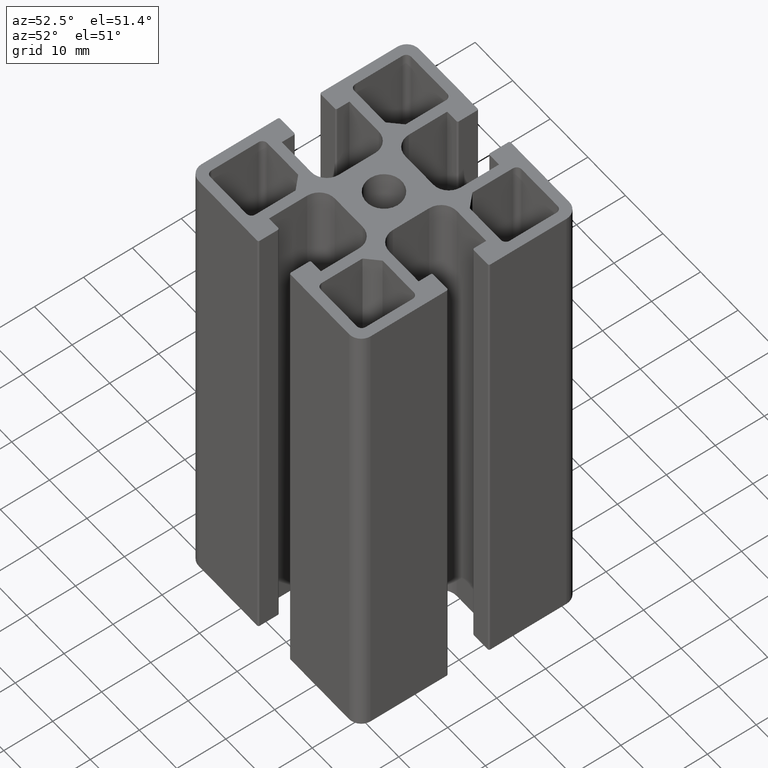
[diagram: clean part render]
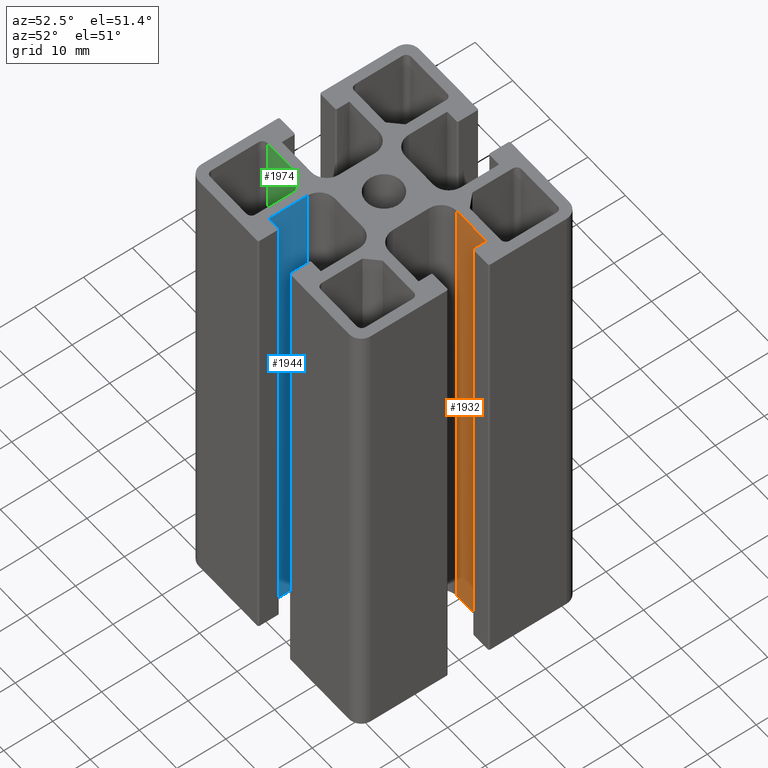
[diagram: same view with three faces highlighted in distinct colors, each labeled with its STEP entity id]
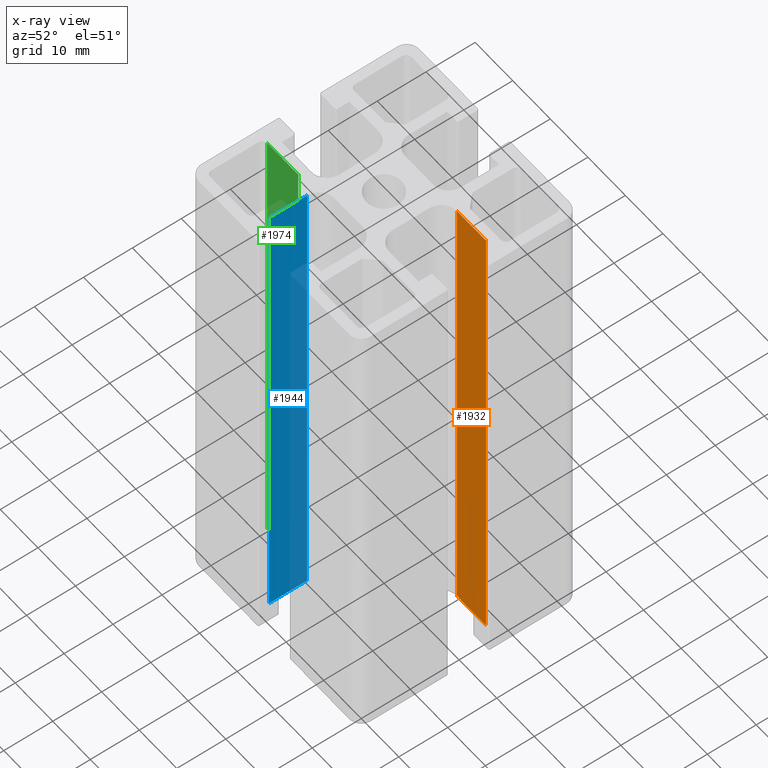
[diagram: x-ray of the same camera — body ghosted, the three highlighted faces saturated]
A machine part, auxiliary view with three faces highlighted in distinct colors.
The next image is the same camera in x-ray (body ghosted, the three faces saturated) — at least one of them is partly hidden behind the body in this view.
Their STEP definitions:

[orange] entity #1932 — the highlighted planar face has unit normal (0, 1, 0).
#185=FACE_OUTER_BOUND('',#285,.T.);
#285=EDGE_LOOP('',(#1400,#1401,#1402,#1403));
#435=LINE('',#2970,#643);
#437=LINE('',#2974,#645);
#438=LINE('',#2976,#646);
#439=LINE('',#2977,#647);
#643=VECTOR('',#2389,100.);
#645=VECTOR('',#2393,7.8);
#646=VECTOR('',#2394,100.);
#647=VECTOR('',#2395,7.8);
#848=VERTEX_POINT('',#2967);
#849=VERTEX_POINT('',#2969);
#850=VERTEX_POINT('',#2973);
#851=VERTEX_POINT('',#2975);
#1075=EDGE_CURVE('',#849,#848,#435,.T.);
#1077=EDGE_CURVE('',#850,#848,#437,.T.);
#1078=EDGE_CURVE('',#851,#850,#438,.T.);
#1079=EDGE_CURVE('',#849,#851,#439,.T.);
#1400=ORIENTED_EDGE('',*,*,#1077,.F.);
#1401=ORIENTED_EDGE('',*,*,#1078,.F.);
#1402=ORIENTED_EDGE('',*,*,#1079,.F.);
#1403=ORIENTED_EDGE('',*,*,#1075,.T.);
#1859=PLANE('',#2063);
#1932=ADVANCED_FACE('',(#185),#1859,.F.);
#2063=AXIS2_PLACEMENT_3D('',#2972,#2391,#2392);
#2389=DIRECTION('',(0.,0.,1.));
#2391=DIRECTION('center_axis',(1.42336285208353E-16,1.,0.));
#2392=DIRECTION('ref_axis',(-1.,1.77635683940025E-16,0.));
#2393=DIRECTION('',(1.,-1.42336285208353E-16,0.));
#2394=DIRECTION('',(0.,0.,1.));
#2395=DIRECTION('',(-1.,1.42336285208353E-16,0.));
#2967=CARTESIAN_POINT('',(18.2,6.9,100.));
#2969=CARTESIAN_POINT('',(18.2,6.9,0.));
#2970=CARTESIAN_POINT('',(18.2,6.9,0.));
#2972=CARTESIAN_POINT('Origin',(18.2,6.9,0.));
#2973=CARTESIAN_POINT('',(10.4,6.9,100.));
#2974=CARTESIAN_POINT('',(9.09999999999999,6.9,100.));
#2975=CARTESIAN_POINT('',(10.4,6.9,0.));
#2976=CARTESIAN_POINT('',(10.4,6.9,0.));
#2977=CARTESIAN_POINT('',(9.09999999999999,6.9,0.));

[blue] entity #1944 — the highlighted planar face has unit normal (-1, 0, 0).
#197=FACE_OUTER_BOUND('',#297,.T.);
#297=EDGE_LOOP('',(#1448,#1449,#1450,#1451));
#461=LINE('',#3046,#669);
#462=LINE('',#3049,#670);
#463=LINE('',#3051,#671);
#464=LINE('',#3052,#672);
#669=VECTOR('',#2463,100.);
#670=VECTOR('',#2466,7.8);
#671=VECTOR('',#2467,7.8);
#672=VECTOR('',#2468,100.);
#874=VERTEX_POINT('',#3042);
#875=VERTEX_POINT('',#3044);
#876=VERTEX_POINT('',#3048);
#877=VERTEX_POINT('',#3050);
#1113=EDGE_CURVE('',#875,#874,#461,.T.);
#1114=EDGE_CURVE('',#874,#876,#462,.T.);
#1115=EDGE_CURVE('',#877,#875,#463,.T.);
#1116=EDGE_CURVE('',#877,#876,#464,.T.);
#1448=ORIENTED_EDGE('',*,*,#1114,.F.);
#1449=ORIENTED_EDGE('',*,*,#1113,.F.);
#1450=ORIENTED_EDGE('',*,*,#1115,.F.);
#1451=ORIENTED_EDGE('',*,*,#1116,.T.);
#1865=PLANE('',#2087);
#1944=ADVANCED_FACE('',(#197),#1865,.F.);
#2087=AXIS2_PLACEMENT_3D('',#3047,#2464,#2465);
#2463=DIRECTION('',(0.,0.,1.));
#2464=DIRECTION('center_axis',(-1.,1.42336285208353E-16,0.));
#2465=DIRECTION('ref_axis',(-1.77635683940025E-16,-1.,0.));
#2466=DIRECTION('',(1.42336285208353E-16,1.,0.));
#2467=DIRECTION('',(-1.42336285208353E-16,-1.,0.));
#2468=DIRECTION('',(0.,0.,1.));
#3042=CARTESIAN_POINT('',(-6.9,-18.2,100.));
#3044=CARTESIAN_POINT('',(-6.9,-18.2,0.));
#3046=CARTESIAN_POINT('',(-6.9,-18.2,0.));
#3047=CARTESIAN_POINT('Origin',(-6.9,-10.4,0.));
#3048=CARTESIAN_POINT('',(-6.9,-10.4,100.));
#3049=CARTESIAN_POINT('',(-6.9,-5.2,100.));
#3050=CARTESIAN_POINT('',(-6.9,-10.4,0.));
#3051=CARTESIAN_POINT('',(-6.9,-5.2,0.));
#3052=CARTESIAN_POINT('',(-6.9,-10.4,0.));

[green] entity #1974 — the highlighted planar face has unit normal (0, 1, 0).
#227=FACE_OUTER_BOUND('',#327,.T.);
#327=EDGE_LOOP('',(#1568,#1569,#1570,#1571));
#525=LINE('',#3229,#733);
#528=LINE('',#3235,#736);
#529=LINE('',#3237,#737);
#530=LINE('',#3238,#738);
#733=VECTOR('',#2639,100.);
#736=VECTOR('',#2644,8.26654762208439);
#737=VECTOR('',#2645,100.);
#738=VECTOR('',#2646,8.26654762208439);
#936=VERTEX_POINT('',#3225);
#938=VERTEX_POINT('',#3228);
#940=VERTEX_POINT('',#3234);
#941=VERTEX_POINT('',#3236);
#1203=EDGE_CURVE('',#938,#936,#525,.T.);
#1206=EDGE_CURVE('',#940,#936,#528,.T.);
#1207=EDGE_CURVE('',#941,#940,#529,.T.);
#1208=EDGE_CURVE('',#938,#941,#530,.T.);
#1568=ORIENTED_EDGE('',*,*,#1206,.F.);
#1569=ORIENTED_EDGE('',*,*,#1207,.F.);
#1570=ORIENTED_EDGE('',*,*,#1208,.F.);
#1571=ORIENTED_EDGE('',*,*,#1203,.T.);
#1882=PLANE('',#2143);
#1974=ADVANCED_FACE('',(#227),#1882,.F.);
#2143=AXIS2_PLACEMENT_3D('',#3233,#2642,#2643);
#2639=DIRECTION('',(0.,0.,1.));
#2642=DIRECTION('center_axis',(5.37212425491461E-16,1.,0.));
#2643=DIRECTION('ref_axis',(-1.,5.32907051820075E-16,0.));
#2644=DIRECTION('',(1.,-5.37212425491461E-16,0.));
#2645=DIRECTION('',(0.,0.,1.));
#2646=DIRECTION('',(-1.,5.37212425491461E-16,0.));
#3225=CARTESIAN_POINT('',(-11.2334523779156,-8.9,100.));
#3228=CARTESIAN_POINT('',(-11.2334523779156,-8.9,0.));
#3229=CARTESIAN_POINT('',(-11.2334523779156,-8.9,0.));
#3233=CARTESIAN_POINT('Origin',(-11.2334523779156,-8.9,0.));
#3234=CARTESIAN_POINT('',(-19.5,-8.9,100.));
#3235=CARTESIAN_POINT('',(-5.61672618895781,-8.9,100.));
#3236=CARTESIAN_POINT('',(-19.5,-8.9,0.));
#3237=CARTESIAN_POINT('',(-19.5,-8.9,0.));
#3238=CARTESIAN_POINT('',(-5.61672618895781,-8.9,0.));